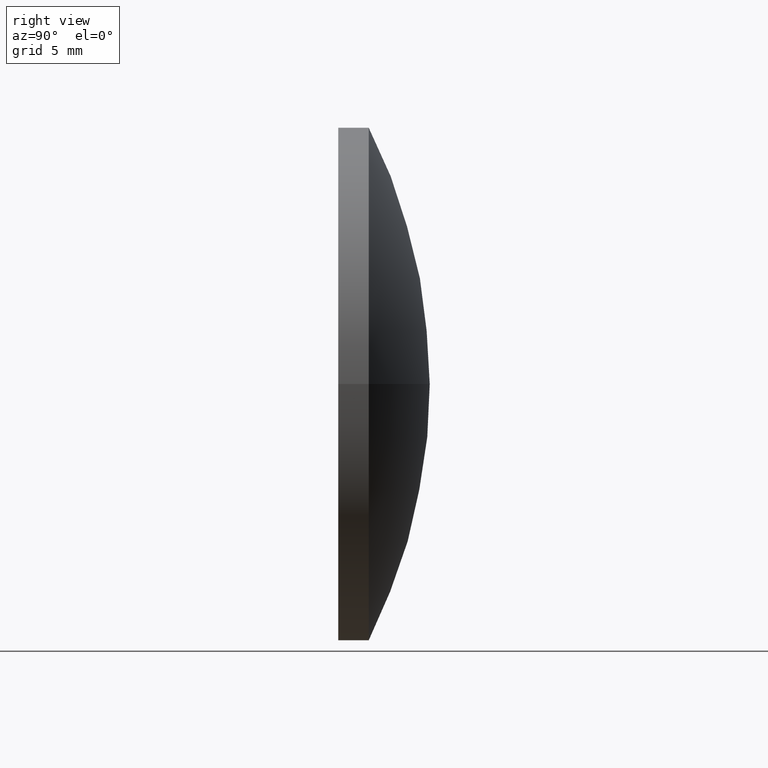
[diagram: clean part render]
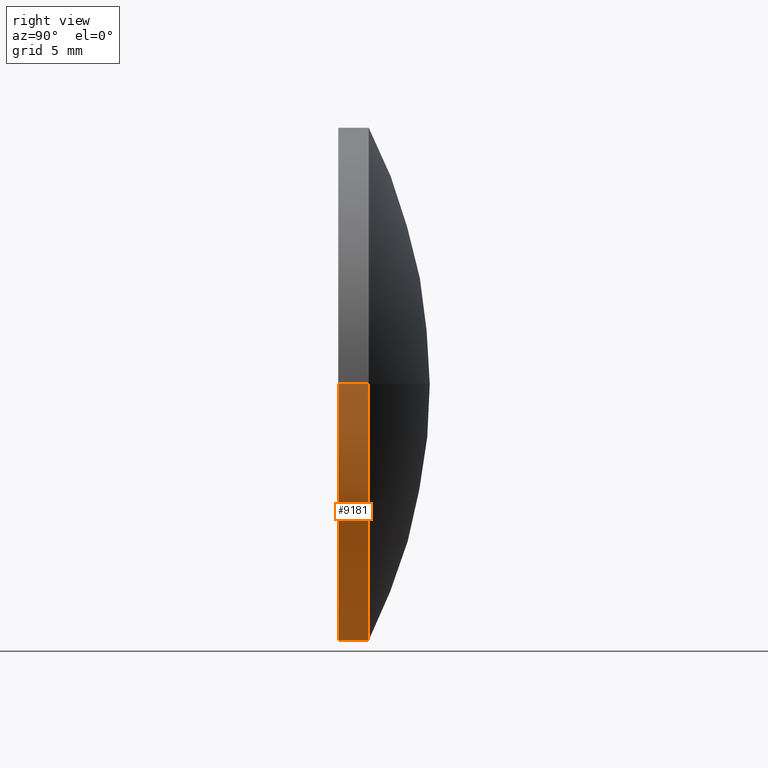
[diagram: same view with one face highlighted and labeled with its STEP entity id]
A machine part, right view. The second image highlights one B-rep face of the part: STEP entity #9181.
In plain terms, the highlighted cylindrical surface (partial cylindrical patch) has radius 16.85 mm, axis along (-0, -1, -0).
Its self-contained STEP definition (entity closure, byte-faithful):
#361 = CARTESIAN_POINT ( 'NONE',  ( 16.84999999999999800, -4.663282616847321200E-015, 0.0000000000000000000 ) ) ;
#834 = EDGE_CURVE ( 'NONE', #2733, #5668, #11599, .T. ) ;
#1017 = CARTESIAN_POINT ( 'NONE',  ( -16.85000000000001200, 2.000000000000191800, 2.063529856563290600E-015 ) ) ;
#1465 = AXIS2_PLACEMENT_3D ( 'NONE', #3457, #11268, #1590 ) ;
#1521 = DIRECTION ( 'NONE',  ( -5.836103876533815000E-015, -1.000000000000000000, -0.0000000000000000000 ) ) ;
#1590 = DIRECTION ( 'NONE',  ( 1.000000000000000000, -5.816728569299081700E-015, 0.0000000000000000000 ) ) ;
#1608 = CIRCLE ( 'NONE', #7897, 16.85000000000002300 ) ;
#1694 = DIRECTION ( 'NONE',  ( -5.836103876533815000E-015, -1.000000000000000000, -0.0000000000000000000 ) ) ;
#1818 = CARTESIAN_POINT ( 'NONE',  ( 16.84999999999999100, 1.999999999999994900, 0.0000000000000000000 ) ) ;
#2704 = CARTESIAN_POINT ( 'NONE',  ( -1.167220775306714700E-014, 2.000000000000093300, 0.0000000000000000000 ) ) ;
#2733 = VERTEX_POINT ( 'NONE', #1017 ) ;
#3457 = CARTESIAN_POINT ( 'NONE',  ( 0.0000000000000000000, 4.000000000000010700, 0.0000000000000000000 ) ) ;
#3539 = VERTEX_POINT ( 'NONE', #5109 ) ;
#3704 = ORIENTED_EDGE ( 'NONE', *, *, #3744, .T. ) ;
#3744 = EDGE_CURVE ( 'NONE', #5668, #12225, #10118, .T. ) ;
#3759 = DIRECTION ( 'NONE',  ( -5.836103876533815000E-015, -1.000000000000000000, -0.0000000000000000000 ) ) ;
#4385 = EDGE_CURVE ( 'NONE', #3539, #12225, #1608, .T. ) ;
#4392 = LINE ( 'NONE', #11238, #8650 ) ;
#4799 = EDGE_LOOP ( 'NONE', ( #12545, #5228, #3704, #8344 ) ) ;
#5049 = AXIS2_PLACEMENT_3D ( 'NONE', #2704, #1694, #11422 ) ;
#5109 = CARTESIAN_POINT ( 'NONE',  ( -16.85000000000004400, 1.920134180223424900E-013, 2.063529856563293800E-015 ) ) ;
#5228 = ORIENTED_EDGE ( 'NONE', *, *, #834, .T. ) ;
#5668 = VERTEX_POINT ( 'NONE', #1818 ) ;
#6018 = FACE_OUTER_BOUND ( 'NONE', #4799, .T. ) ;
#6162 = CYLINDRICAL_SURFACE ( 'NONE', #1465, 16.85000000000001200 ) ;
#7536 = VECTOR ( 'NONE', #9918, 1000.000000000000000 ) ;
#7897 = AXIS2_PLACEMENT_3D ( 'NONE', #11461, #3759, #12512 ) ;
#7914 = CARTESIAN_POINT ( 'NONE',  ( 16.85000000000001200, 3.999999999999912500, 0.0000000000000000000 ) ) ;
#8344 = ORIENTED_EDGE ( 'NONE', *, *, #4385, .F. ) ;
#8650 = VECTOR ( 'NONE', #1521, 1000.000000000000000 ) ;
#9181 = ADVANCED_FACE ( 'NONE', ( #6018 ), #6162, .T. ) ;
#9463 = EDGE_CURVE ( 'NONE', #2733, #3539, #4392, .T. ) ;
#9918 = DIRECTION ( 'NONE',  ( -5.836103876533815000E-015, -1.000000000000000000, -0.0000000000000000000 ) ) ;
#10118 = LINE ( 'NONE', #7914, #7536 ) ;
#11238 = CARTESIAN_POINT ( 'NONE',  ( -16.85000000000001200, 4.000000000000108400, 2.063529856563291400E-015 ) ) ;
#11268 = DIRECTION ( 'NONE',  ( -5.836103876533815000E-015, -1.000000000000000000, -0.0000000000000000000 ) ) ;
#11422 = DIRECTION ( 'NONE',  ( 1.000000000000000000, -5.842466306331382200E-015, 0.0000000000000000000 ) ) ;
#11461 = CARTESIAN_POINT ( 'NONE',  ( -2.334441550613477400E-014, 9.367506770274758300E-014, 0.0000000000000000000 ) ) ;
#11599 = CIRCLE ( 'NONE', #5049, 16.85000000000000100 ) ;
#12225 = VERTEX_POINT ( 'NONE', #361 ) ;
#12512 = DIRECTION ( 'NONE',  ( 1.000000000000000000, -5.836103876533814200E-015, 0.0000000000000000000 ) ) ;
#12545 = ORIENTED_EDGE ( 'NONE', *, *, #9463, .F. ) ;